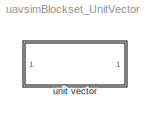
MODEL uavsimBlockset_UnitVector
KIND library
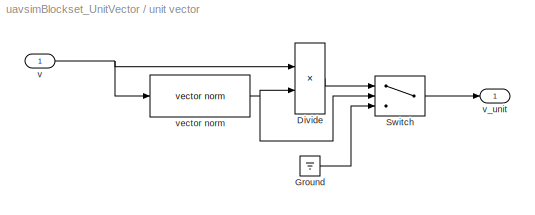
BLOCK [SubSystem] unit vector
  FunctionWithSeparateData = off
  MaskHideContents = off
  MinAlgLoopOccurrences = off
  Opaque = off
  Ports = [1, 1]
  PropExecContextOutsideSubsystem = off
  RTWSystemCode = Auto
  RequestExecContextInheritance = off
  SID = 2169
BLOCK [Product] unit vector/Divide
  InputSameDT = off
  Inputs = */
  OutDataTypeStr = Inherit: Inherit via internal rule
  Ports = [2, 1]
  RndMeth = Floor
  SID = 2176
  SaturateOnIntegerOverflow = off
BLOCK [Ground] unit vector/Ground
  SID = 2183
BLOCK [Switch] unit vector/Switch
  Criteria = u2 > Threshold
  InputSameDT = off
  SID = 2184
  SaturateOnIntegerOverflow = off
BLOCK [Inport] unit vector/v
  IconDisplay = Port number
  SID = 2170
BLOCK [Outport] unit vector/v_unit
  IconDisplay = Port number
  SID = 2175
  SignalType = real
BLOCK [Reference] unit vector/vector norm  REF=uavsimblockset/vector norm  (lib defined in mdl_5d9185be9e12)
  Ports = [1, 1]
  SID = 2177
  SourceBlock = uavsimblockset/vector norm
  SourceType = SubSystem
LINE unit vector/Divide:1 -> unit vector/Switch:1
LINE unit vector/Ground:1 -> unit vector/Switch:3
LINE unit vector/Switch:1 -> unit vector/v_unit:1
NET unit vector/v:1 -> unit vector/Divide:1, unit vector/vector norm:1
NET unit vector/vector norm:1 -> unit vector/Divide:2, unit vector/Switch:2
note: NET lines group one-source signal fan-out (src -> all destinations, sorted); 1:1 wires keep LINE
